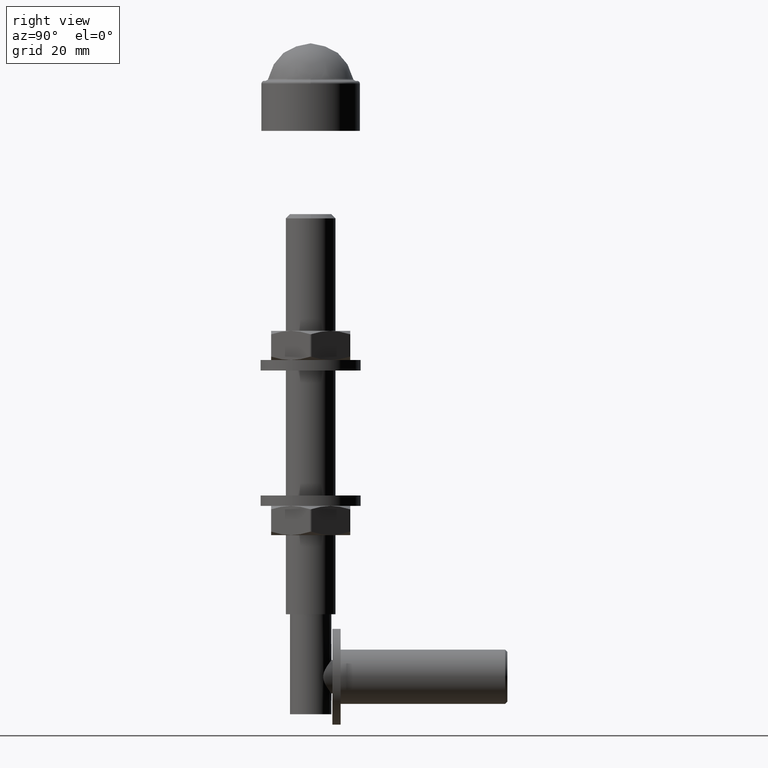
[diagram: clean part render]
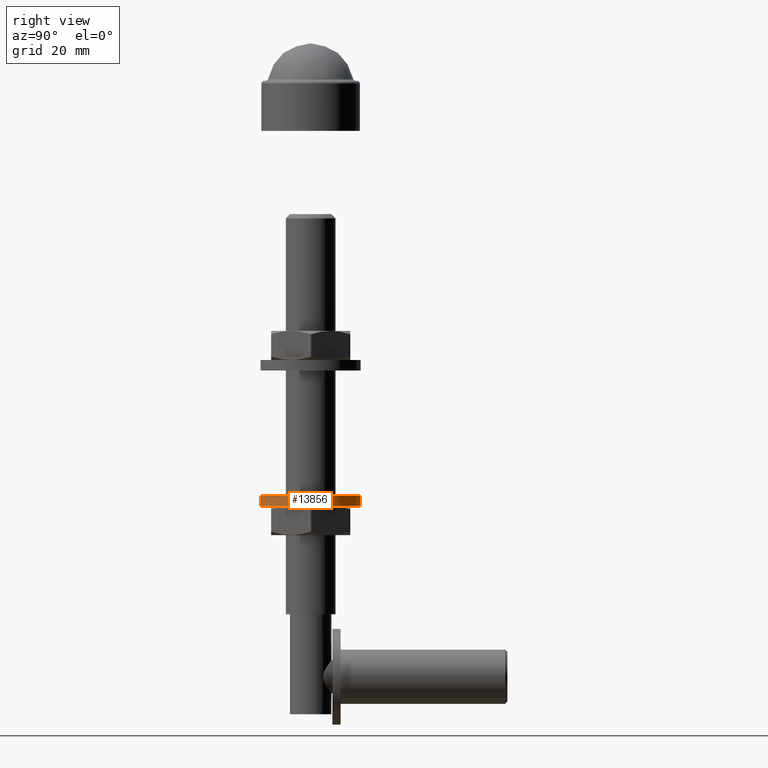
[diagram: same view with one face highlighted and labeled with its STEP entity id]
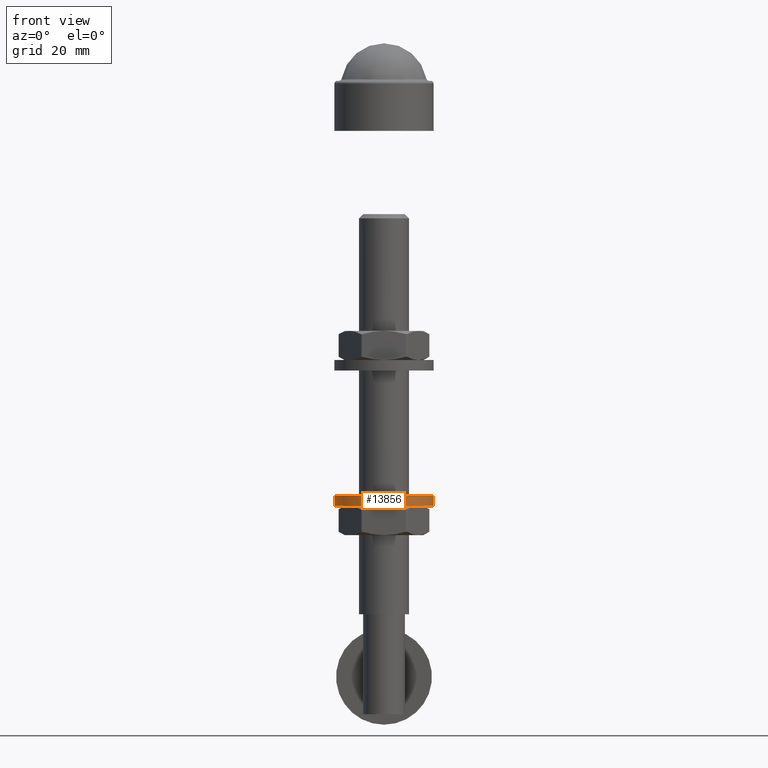
[diagram: same view with one face highlighted and labeled with its STEP entity id]
A machine part, right view. The second image highlights one B-rep face of the part: STEP entity #13856.
A second angle (front view) of the same face is appended — the face is thin or edge-on in the first view.
In plain terms, the highlighted cylindrical surface (bore or boss wall) has radius 12 mm, axis along (-0, -0, 1).
Its self-contained STEP definition (entity closure, byte-faithful):
#93 = CARTESIAN_POINT ( 'NONE',  ( 0.000000000000000000, 0.000000000000000000, 0.000000000000000000 ) ) ;
#657 = AXIS2_PLACEMENT_3D ( 'NONE', #6292, #2485, #13430 ) ;
#850 = EDGE_CURVE ( 'NONE', #14988, #14988, #13070, .T. ) ;
#852 = ORIENTED_EDGE ( 'NONE', *, *, #850, .F. ) ;
#2257 = FACE_OUTER_BOUND ( 'NONE', #9844, .T. ) ;
#2485 = DIRECTION ( 'NONE',  ( 0.000000000000000000, 1.000000000000000000, 0.000000000000000000 ) ) ;
#2823 = CARTESIAN_POINT ( 'NONE',  ( 0.000000000000000000, 2.500000000000000000, 0.000000000000000000 ) ) ;
#3565 = VERTEX_POINT ( 'NONE', #8924 ) ;
#3829 = ORIENTED_EDGE ( 'NONE', *, *, #5477, .T. ) ;
#3901 = CARTESIAN_POINT ( 'NONE',  ( 0.000000000000000000, 2.500000000000000000, 12.00000000000000178 ) ) ;
#3943 = CIRCLE ( 'NONE', #10032, 12.00000000000000178 ) ;
#4166 = DIRECTION ( 'NONE',  ( -0.000000000000000000, -1.000000000000000000, -0.000000000000000000 ) ) ;
#5477 = EDGE_CURVE ( 'NONE', #3565, #3565, #3943, .T. ) ;
#6292 = CARTESIAN_POINT ( 'NONE',  ( 0.000000000000000000, 2.500000000000000000, 0.000000000000000000 ) ) ;
#7336 = DIRECTION ( 'NONE',  ( 0.000000000000000000, 0.000000000000000000, 1.000000000000000000 ) ) ;
#8924 = CARTESIAN_POINT ( 'NONE',  ( 0.000000000000000000, 0.000000000000000000, 12.00000000000000178 ) ) ;
#9844 = EDGE_LOOP ( 'NONE', ( #3829 ) ) ;
#9879 = FACE_OUTER_BOUND ( 'NONE', #10247, .T. ) ;
#10032 = AXIS2_PLACEMENT_3D ( 'NONE', #93, #13440, #7336 ) ;
#10247 = EDGE_LOOP ( 'NONE', ( #852 ) ) ;
#12059 = AXIS2_PLACEMENT_3D ( 'NONE', #2823, #4166, #12712 ) ;
#12712 = DIRECTION ( 'NONE',  ( 0.000000000000000000, 0.000000000000000000, -1.000000000000000000 ) ) ;
#13070 = CIRCLE ( 'NONE', #657, 12.00000000000000178 ) ;
#13430 = DIRECTION ( 'NONE',  ( 0.000000000000000000, 0.000000000000000000, 1.000000000000000000 ) ) ;
#13440 = DIRECTION ( 'NONE',  ( 0.000000000000000000, 1.000000000000000000, 0.000000000000000000 ) ) ;
#13856 = ADVANCED_FACE ( 'NONE', ( #9879, #2257 ), #15613, .T. ) ;
#14988 = VERTEX_POINT ( 'NONE', #3901 ) ;
#15613 = CYLINDRICAL_SURFACE ( 'NONE', #12059, 12.00000000000000178 ) ;